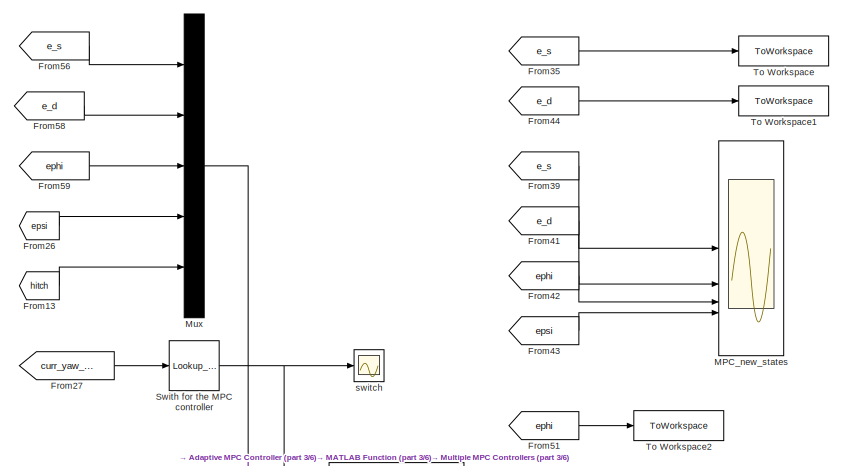
[diagram: root canvas - part 1/6, top right region]
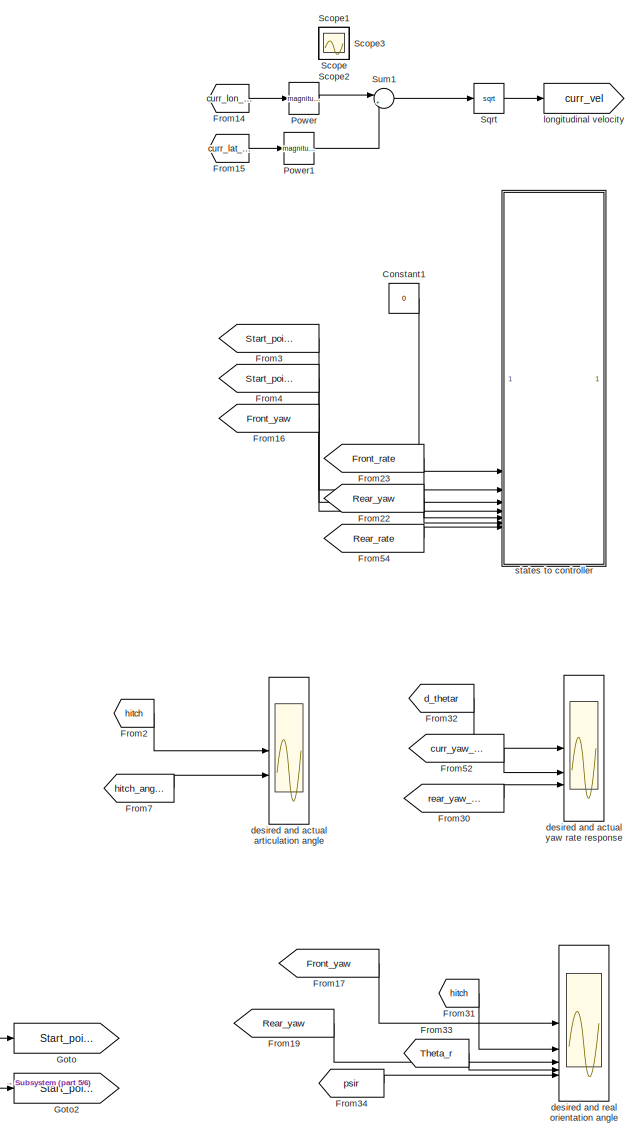
[diagram: root canvas - part 2/6, center side, full height]
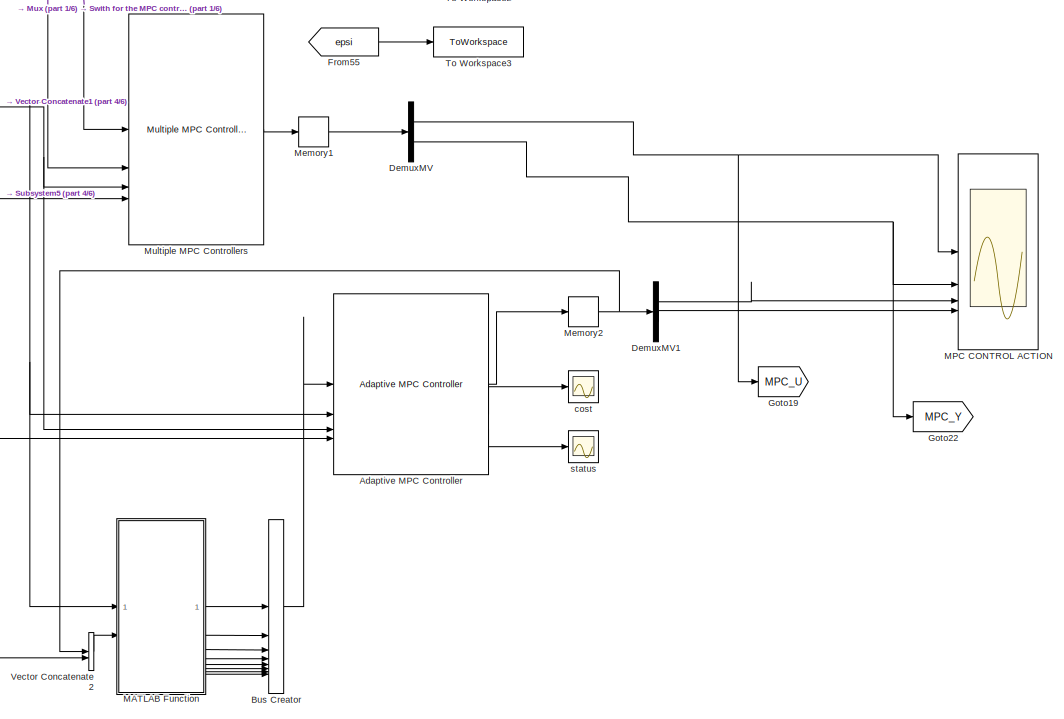
[diagram: root canvas - part 3/6, middle right region]
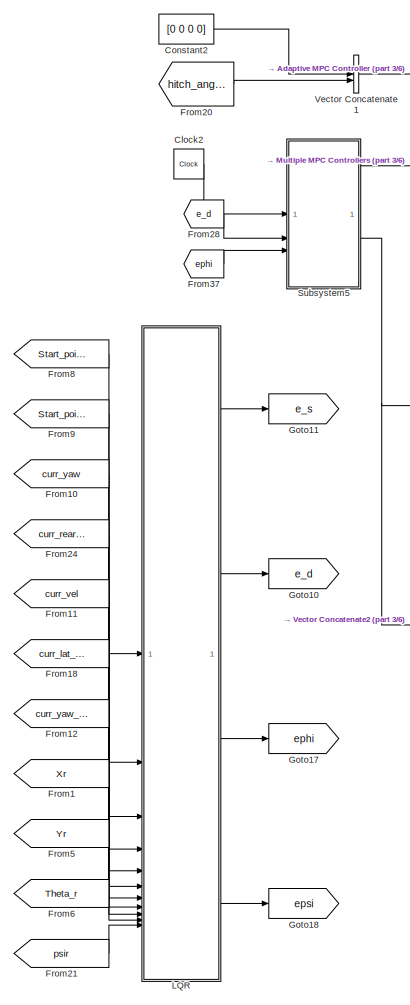
[diagram: root canvas - part 4/6, middle right region]
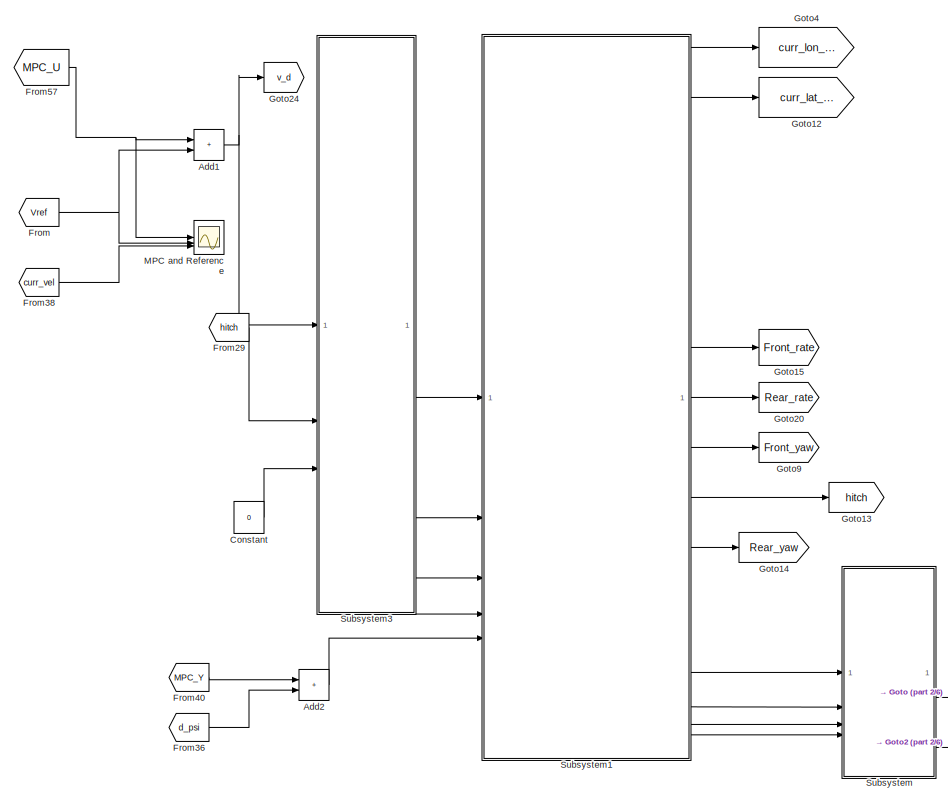
[diagram: root canvas - part 5/6, middle left region]
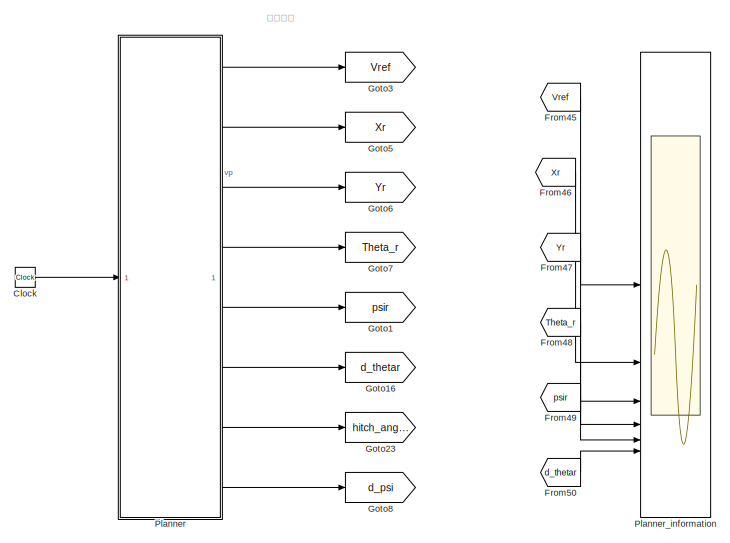
[diagram: root canvas - part 6/6, bottom left region]
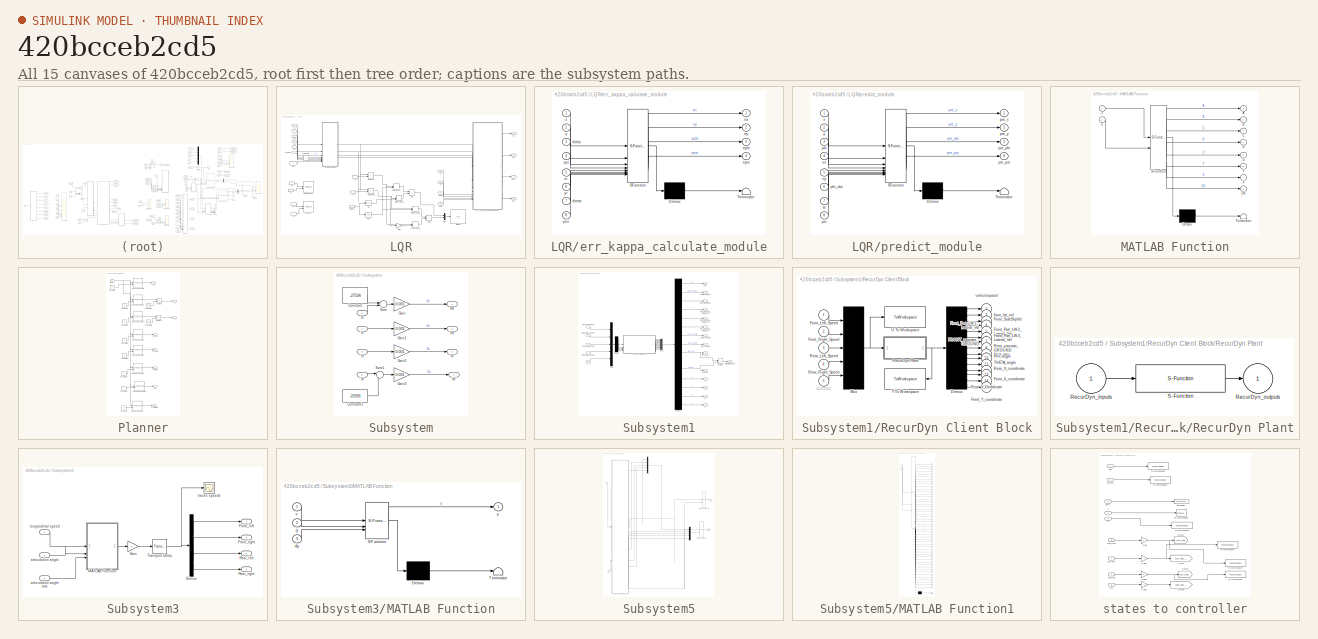
[diagram: thumbnail index - all 15 canvases of the model, root first then tree order]
MODEL slx_420bcceb2cd5
KIND model
CONFIG AbsTol = auto
CONFIG EnableMultiTasking = off
CONFIG FixedStep = 0.02
CONFIG MaxStep = auto
CONFIG MinStep = auto
CONFIG RelTol = 1e-5
CONFIG SampleTimeConstraint = Unconstrained
CONFIG SolverName = VariableStepAuto
CONFIG StartTime = 0.0
CONFIG StopTime = 40
BLOCK [Reference] Adaptive MPC Controller  REF=mpclib/Adaptive MPC Controller  (lib defined in mdl_ae329e0e0455)
  SCDEnableBlockLinearizationSpecification = on
  SourceBlock = mpclib/Adaptive MPC Controller
  SourceType = Adaptive MPC
BLOCK [Sum] Add1
  IconShape = rectangular
BLOCK [Sum] Add2
  IconShape = rectangular
BLOCK [BusCreator] Bus Creator
  DisplayOption = bar
  InheritFromInputs = on
  Inputs = 8
BLOCK [Clock] Clock
BLOCK [Clock] Clock2
BLOCK [Constant] Constant
  Value = 0
BLOCK [Constant] Constant1
  Value = 0
BLOCK [Constant] Constant2
  Value = [0 0 0 0]
BLOCK [Demux] DemuxMV
  Outputs = 2
BLOCK [Demux] DemuxMV1
  Outputs = 2
BLOCK [From] From
  GotoTag = Vref
  TagVisibility = global
BLOCK [From] From1
  GotoTag = Xr
BLOCK [From] From10
  GotoTag = curr_yaw
  TagVisibility = global
BLOCK [From] From11
  GotoTag = curr_vel
  TagVisibility = global
BLOCK [From] From12
  GotoTag = curr_yaw_rate
  TagVisibility = global
BLOCK [From] From13
  GotoTag = hitch
  TagVisibility = global
BLOCK [From] From14
  GotoTag = curr_lon_vel
BLOCK [From] From15
  GotoTag = curr_lat_vel
BLOCK [From] From16
  GotoTag = Front_yaw
BLOCK [From] From17
  GotoTag = Front_yaw
BLOCK [From] From18
  GotoTag = curr_lat_vel
BLOCK [From] From19
  GotoTag = Rear_yaw
BLOCK [From] From2
  GotoTag = hitch
  TagVisibility = global
BLOCK [From] From20
  GotoTag = hitch_angle
BLOCK [From] From21
  GotoTag = psir
BLOCK [From] From22
  GotoTag = Rear_yaw
BLOCK [From] From23
  GotoTag = Front_rate
BLOCK [From] From24
  GotoTag = curr_rearyaw
  TagVisibility = global
BLOCK [From] From26
  GotoTag = epsi
BLOCK [From] From27
  GotoTag = curr_yaw_rate
  TagVisibility = global
BLOCK [From] From28
  GotoTag = e_d
BLOCK [From] From29
  GotoTag = hitch
  TagVisibility = global
BLOCK [From] From3
  GotoTag = Start_point_X
BLOCK [From] From30
  GotoTag = rear_yaw_rate
  TagVisibility = global
BLOCK [From] From31
  GotoTag = hitch
  TagVisibility = global
BLOCK [From] From32
  GotoTag = d_thetar
BLOCK [From] From33
  GotoTag = Theta_r
BLOCK [From] From34
  GotoTag = psir
BLOCK [From] From35
  GotoTag = e_s
BLOCK [From] From36
  GotoTag = d_psi
BLOCK [From] From37
  GotoTag = ephi
BLOCK [From] From38
  GotoTag = curr_vel
  TagVisibility = global
BLOCK [From] From39
  GotoTag = e_s
BLOCK [From] From4
  GotoTag = Start_point_Y
BLOCK [From] From40
  GotoTag = MPC_Y
BLOCK [From] From41
  GotoTag = e_d
BLOCK [From] From42
  GotoTag = ephi
BLOCK [From] From43
  GotoTag = epsi
BLOCK [From] From44
  GotoTag = e_d
BLOCK [From] From45
  GotoTag = Vref
  TagVisibility = global
BLOCK [From] From46
  GotoTag = Xr
BLOCK [From] From47
  GotoTag = Yr
BLOCK [From] From48
  GotoTag = Theta_r
BLOCK [From] From49
  GotoTag = psir
BLOCK [From] From5
  GotoTag = Yr
BLOCK [From] From50
  GotoTag = d_thetar
BLOCK [From] From51
  GotoTag = ephi
BLOCK [From] From52
  GotoTag = curr_yaw_rate
  TagVisibility = global
BLOCK [From] From54
  GotoTag = Rear_rate
BLOCK [From] From55
  GotoTag = epsi
BLOCK [From] From56
  GotoTag = e_s
BLOCK [From] From57
  GotoTag = MPC_U
BLOCK [From] From58
  GotoTag = e_d
BLOCK [From] From59
  GotoTag = ephi
BLOCK [From] From6
  GotoTag = Theta_r
BLOCK [From] From7
  GotoTag = hitch_angle
BLOCK [From] From8
  GotoTag = Start_point_X
BLOCK [From] From9
  GotoTag = Start_point_Y
BLOCK [Goto] Goto
  GotoTag = Start_point_X
BLOCK [Goto] Goto1
  GotoTag = psir
BLOCK [Goto] Goto10
  GotoTag = e_d
BLOCK [Goto] Goto11
  GotoTag = e_s
BLOCK [Goto] Goto12
  GotoTag = curr_lat_vel
BLOCK [Goto] Goto13
  GotoTag = hitch
  TagVisibility = global
BLOCK [Goto] Goto14
  GotoTag = Rear_yaw
BLOCK [Goto] Goto15
  GotoTag = Front_rate
BLOCK [Goto] Goto16
  GotoTag = d_thetar
BLOCK [Goto] Goto17
  GotoTag = ephi
BLOCK [Goto] Goto18
  GotoTag = epsi
BLOCK [Goto] Goto19
  GotoTag = MPC_U
BLOCK [Goto] Goto2
  GotoTag = Start_point_Y
BLOCK [Goto] Goto20
  GotoTag = Rear_rate
BLOCK [Goto] Goto22
  GotoTag = MPC_Y
BLOCK [Goto] Goto23
  GotoTag = hitch_angle
BLOCK [Goto] Goto24
  GotoTag = v_d
BLOCK [Goto] Goto3
  GotoTag = Vref
  TagVisibility = global
BLOCK [Goto] Goto4
  GotoTag = curr_lon_vel
BLOCK [Goto] Goto5
  GotoTag = Xr
BLOCK [Goto] Goto6
  GotoTag = Yr
BLOCK [Goto] Goto7
  GotoTag = Theta_r
BLOCK [Goto] Goto8
  GotoTag = d_psi
BLOCK [Goto] Goto9
  GotoTag = Front_yaw
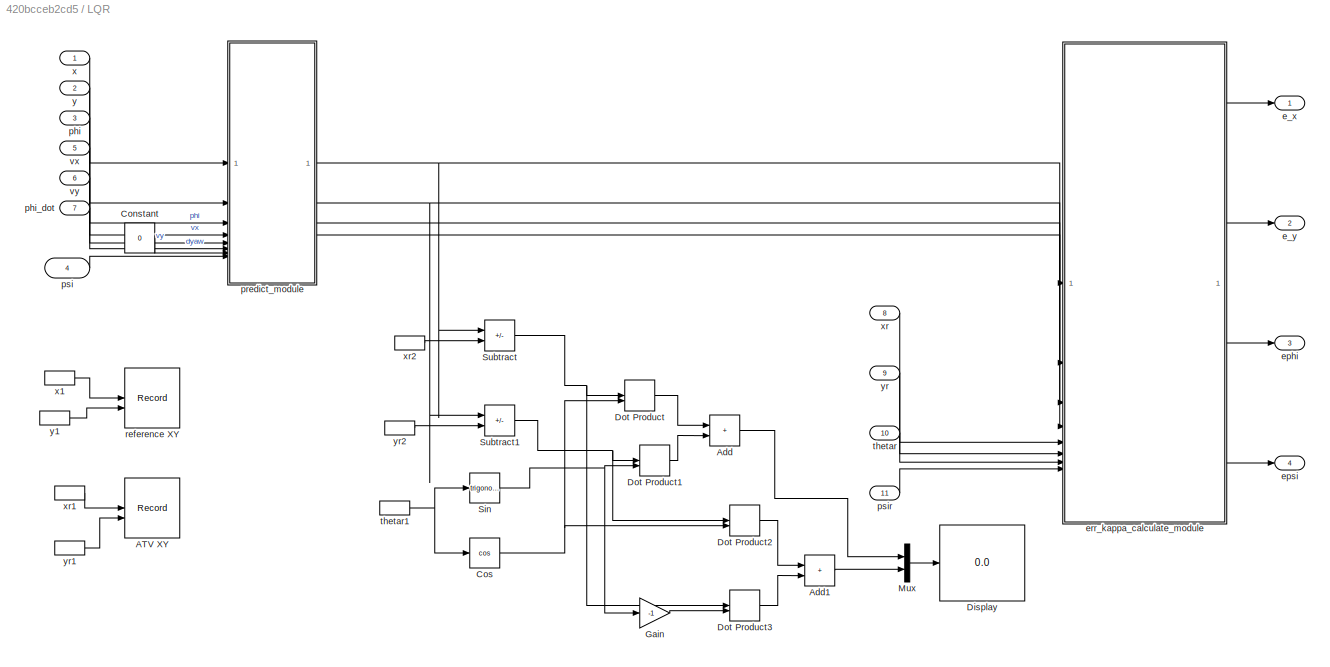
BLOCK [SubSystem] LQR
BLOCK [Record] LQR/ATV XY
  CompatibilityTag = XY
  FileSettingsInternal = {"entries":[{"content":{"excelSettings":{"content":{},"type":"Streamout.ExcelSettings"}},"type":"Streamout.FileSettingStorage","uuid":"7d4ff071-c011-4d00-aaca-92aa85f924c6"}],"packageUris":["http://schema.mathworks.com/mf0/streamout_blocks/R2020a"],"version":"1.0"}
  Layout = [1 1]
  SignalsInternal = {"entries":[{"content":{"signals":[{"content":{"blockPath":["AdaptiveMPC_only_MPC/LQR/ATV XY"],"channel":[],"dimensions":[1],"domain":"AdaptiveMPC_only_MPC/LQR/ATV XY","lineColor":"#a2142f","plots":[1],"port":1,"sid":[""],"signalID":165725,"signalName":"xr1"},"type":"RecordBlkView.Signal","uuid":"68c8aef4-2586-4868-bddc-4b1de75c0796"},{"content":{"blockPath":["AdaptiveMPC_only_MPC/LQR/ATV XY"],"ch...<+415ch>
  VisualizationBindings = {"xyplotplugin":{"info":[{"series":[{"bindingParametersList":[{"parameter":"X-Axis","signalID":165725,"signalName":"xr1"},{"parameter":"Y-Axis","signalID":165729,"signalName":"yr1"}],"seriesID":583}],"subplotID":1}]}}
  st = -1
BLOCK [Sum] LQR/Add
  IconShape = rectangular
BLOCK [Sum] LQR/Add1
  IconShape = rectangular
BLOCK [Constant] LQR/Constant
  Value = 0
BLOCK [Trigonometry] LQR/Cos
  Operator = cos
BLOCK [Display] LQR/Display
  Decimation = 1
BLOCK [DotProduct] LQR/Dot Product
  OutDataTypeStr = Inherit: Inherit via internal rule
BLOCK [DotProduct] LQR/Dot Product1
  OutDataTypeStr = Inherit: Inherit via internal rule
BLOCK [DotProduct] LQR/Dot Product2
  OutDataTypeStr = Inherit: Inherit via internal rule
BLOCK [DotProduct] LQR/Dot Product3
  OutDataTypeStr = Inherit: Inherit via internal rule
BLOCK [Gain] LQR/Gain
  Gain = -1
BLOCK [Mux] LQR/Mux
  DisplayOption = bar
  Inputs = 2
BLOCK [Trigonometry] LQR/Sin
BLOCK [Sum] LQR/Subtract
  IconShape = rectangular
  Inputs = +-
BLOCK [Sum] LQR/Subtract1
  IconShape = rectangular
  Inputs = +-
BLOCK [Outport] LQR/e_x
  VectorParamsAs1DForOutWhenUnconnected = off
BLOCK [Outport] LQR/e_y
  Port = 2
  VectorParamsAs1DForOutWhenUnconnected = off
BLOCK [Outport] LQR/ephi
  NameLocation = top
  Port = 3
  VectorParamsAs1DForOutWhenUnconnected = off
BLOCK [Outport] LQR/epsi
  NameLocation = top
  Port = 4
  VectorParamsAs1DForOutWhenUnconnected = off
BLOCK [SubSystem] LQR/err_kappa_calculate_module
  ErrorFcn = Stateflow.Translate.translate
  PermitHierarchicalResolution = ExplicitOnly
  SFBlockType = MATLAB Function
  TreatAsAtomicUnit = on
BLOCK [Demux] LQR/err_kappa_calculate_module/ Demux 
  Outputs = 1
BLOCK [S-Function] LQR/err_kappa_calculate_module/ SFunction 
  EnableBusSupport = on
  FunctionName = sf_sfun
  PortCounts = [8 5]
  SFcnIsStateOwnerBlock = off
  SFunctionDeploymentMode = off
  Tag = Stateflow S-Function 5
BLOCK [Terminator] LQR/err_kappa_calculate_module/ Terminator 
BLOCK [Outport] LQR/err_kappa_calculate_module/ephi
  Port = 3
BLOCK [Outport] LQR/err_kappa_calculate_module/epsi
  Port = 4
BLOCK [Outport] LQR/err_kappa_calculate_module/ex
  VectorParamsAs1DForOutWhenUnconnected = off
BLOCK [Outport] LQR/err_kappa_calculate_module/ey
  Port = 2
  VectorParamsAs1DForOutWhenUnconnected = off
BLOCK [Inport] LQR/err_kappa_calculate_module/psi
  Port = 4
BLOCK [Inport] LQR/err_kappa_calculate_module/psir
  Port = 8
BLOCK [Inport] LQR/err_kappa_calculate_module/theta
  Port = 3
BLOCK [Inport] LQR/err_kappa_calculate_module/thetar
  Port = 7
BLOCK [Inport] LQR/err_kappa_calculate_module/x
BLOCK [Inport] LQR/err_kappa_calculate_module/xr
  Port = 5
BLOCK [Inport] LQR/err_kappa_calculate_module/y
  Port = 2
BLOCK [Inport] LQR/err_kappa_calculate_module/yr
  Port = 6
BLOCK [Inport] LQR/phi
  Port = 3
BLOCK [Inport] LQR/phi_dot
  Port = 7
BLOCK [SubSystem] LQR/predict_module
  ErrorFcn = Stateflow.Translate.translate
  PermitHierarchicalResolution = ExplicitOnly
  SFBlockType = MATLAB Function
  TreatAsAtomicUnit = on
BLOCK [Demux] LQR/predict_module/ Demux 
  Outputs = 1
BLOCK [S-Function] LQR/predict_module/ SFunction 
  EnableBusSupport = on
  FunctionName = sf_sfun
  PortCounts = [8 5]
  SFcnIsStateOwnerBlock = off
  SFunctionDeploymentMode = off
  Tag = Stateflow S-Function 9
BLOCK [Terminator] LQR/predict_module/ Terminator 
BLOCK [Inport] LQR/predict_module/phi
  Port = 3
BLOCK [Inport] LQR/predict_module/phi_dot
  Port = 6
BLOCK [Outport] LQR/predict_module/pre_phi
  Port = 3
  VectorParamsAs1DForOutWhenUnconnected = off
BLOCK [Outport] LQR/predict_module/pre_psi
  Port = 4
BLOCK [Outport] LQR/predict_module/pre_x
  VectorParamsAs1DForOutWhenUnconnected = off
BLOCK [Outport] LQR/predict_module/pre_y
  Port = 2
  VectorParamsAs1DForOutWhenUnconnected = off
BLOCK [Inport] LQR/predict_module/psi
  Port = 8
BLOCK [Inport] LQR/predict_module/ts
  Port = 7
BLOCK [Inport] LQR/predict_module/vx
  Port = 4
BLOCK [Inport] LQR/predict_module/vy
  Port = 5
BLOCK [Inport] LQR/predict_module/x
BLOCK [Inport] LQR/predict_module/y
  Port = 2
BLOCK [Inport] LQR/psi
  Port = 4
BLOCK [Inport] LQR/psir
  Port = 11
BLOCK [Record] LQR/reference XY
  CompatibilityTag = XY
  FileSettingsInternal = {"entries":[{"content":{"excelSettings":{"content":{},"type":"Streamout.ExcelSettings"}},"type":"Streamout.FileSettingStorage","uuid":"01dd9b82-04e5-459d-9b91-d9a9579cc2c9"}],"packageUris":["http://schema.mathworks.com/mf0/streamout_blocks/R2020a"],"version":"1.0"}
  Layout = [1 1]
  SignalsInternal = {"entries":[{"content":{"signals":[{"content":{"blockPath":["AdaptiveMPC_only_MPC/LQR/reference XY"],"channel":[],"dimensions":[1],"domain":"AdaptiveMPC_only_MPC/LQR/reference XY","lineColor":"#a2142f","plots":[1],"port":1,"sid":[""],"signalID":165733,"signalName":"x1"},"type":"RecordBlkView.Signal","uuid":"15320c6c-986b-4afd-bf62-20c31eac0383"},{"content":{"blockPath":["AdaptiveMPC_only_MPC/LQR/r...<+437ch>
  VisualizationBindings = {"xyplotplugin":{"info":[{"series":[{"bindingParametersList":[{"parameter":"X-Axis","signalID":165733,"signalName":"x1"},{"parameter":"Y-Axis","signalID":165737,"signalName":"y1"}],"seriesID":16425}],"subplotID":1}]}}
  st = -1
BLOCK [Inport] LQR/thetar
  Port = 10
BLOCK [InportShadow] LQR/thetar1
  Port = 10
BLOCK [Inport] LQR/vx
  Port = 5
BLOCK [Inport] LQR/vy
  Port = 6
BLOCK [Inport] LQR/x
BLOCK [InportShadow] LQR/x1
BLOCK [Inport] LQR/xr
  Port = 8
BLOCK [InportShadow] LQR/xr1
  Port = 8
BLOCK [InportShadow] LQR/xr2
  Port = 8
BLOCK [Inport] LQR/y
  Port = 2
BLOCK [InportShadow] LQR/y1
  Port = 2
BLOCK [Inport] LQR/yr
  Port = 9
BLOCK [InportShadow] LQR/yr1
  Port = 9
BLOCK [InportShadow] LQR/yr2
  Port = 9
BLOCK [SubSystem] MATLAB Function
  ErrorFcn = Stateflow.Translate.translate
  PermitHierarchicalResolution = ExplicitOnly
  SFBlockType = MATLAB Function
  TreatAsAtomicUnit = on
BLOCK [Demux] MATLAB Function/ Demux 
  Outputs = 1
BLOCK [S-Function] MATLAB Function/ SFunction 
  EnableBusSupport = on
  FunctionName = sf_sfun
  PortCounts = [2 9]
  SFcnIsStateOwnerBlock = off
  SFunctionDeploymentMode = off
  Tag = Stateflow S-Function 4
BLOCK [Terminator] MATLAB Function/ Terminator 
BLOCK [Outport] MATLAB Function/A
BLOCK [Outport] MATLAB Function/B
  Port = 2
BLOCK [Outport] MATLAB Function/C
  Port = 3
BLOCK [Outport] MATLAB Function/D
  Port = 4
BLOCK [Outport] MATLAB Function/DX
  Port = 8
BLOCK [Outport] MATLAB Function/U
  Port = 5
BLOCK [Outport] MATLAB Function/X
  Port = 7
BLOCK [Outport] MATLAB Function/Y
  Port = 6
BLOCK [Inport] MATLAB Function/u
  Port = 2
BLOCK [Inport] MATLAB Function/x
BLOCK [Scope] MPC CONTROL ACTION
  Floating = off
  NumInputPorts = 4
  ScopeSpecificationString = Simulink.scopes.TimeScopeBlockCfg('CurrentConfiguration', extmgr.ConfigurationSet(extmgr.Configuration('Core','General UI',true),extmgr.Configuration('Core','Source UI',true),extmgr.Configuration('Sources','WiredSimulink',true,'DataLoggingVariableName','ScopeData3'),extmgr.Configuration('Visuals','Time Domain',true,'SerializedDisplays',{struct('MinYLimReal','-0.39223','MaxYLimReal','3.53005','YLab...<+3491ch>
BLOCK [Scope] MPC and Reference
  Floating = off
  NumInputPorts = 3
  ScopeSpecificationString = Simulink.scopes.TimeScopeBlockCfg('CurrentConfiguration', extmgr.ConfigurationSet(extmgr.Configuration('Core','General UI',true),extmgr.Configuration('Core','Source UI',true),extmgr.Configuration('Sources','WiredSimulink',true,'DataLoggingVariableName','ScopeData2'),extmgr.Configuration('Visuals','Time Domain',true,'SerializedDisplays',{struct('MinYLimReal','-0.66777','MaxYLimReal','6.00994','YLab...<+1548ch>
BLOCK [Scope] MPC_new_states
  Floating = off
  NumInputPorts = 4
  ScopeSpecificationString = Simulink.scopes.TimeScopeBlockCfg('CurrentConfiguration', extmgr.ConfigurationSet(extmgr.Configuration('Core','General UI',true),extmgr.Configuration('Core','Source UI',true),extmgr.Configuration('Sources','WiredSimulink',true,'DataLoggingVariableName','ScopeData5'),extmgr.Configuration('Visuals','Time Domain',true,'SerializedDisplays',{struct('MinYLimReal','-0.70042','MaxYLimReal','0.13639','YLab...<+3636ch>
BLOCK [Memory] Memory1
BLOCK [Memory] Memory2
BLOCK [Reference] Multiple MPC Controllers  REF=mpclib/Multiple MPC Controllers  (lib defined in mdl_ae329e0e0455)
  SourceBlock = mpclib/Multiple MPC Controllers
  SourceType = Multiple MPC
BLOCK [Mux] Mux
  DisplayOption = bar
  Inputs = 5
BLOCK [SubSystem] Planner
BLOCK [Lookup_n-D] Planner/2-D Lookup Table
  BreakpointsForDimension1 = t
  BreakpointsForDimension2 = [1:8]
  InputPortMap = u0,u1
  InternalRulePriority = Speed
  RndMeth = Simplest
  Table = val
BLOCK [Lookup_n-D] Planner/2-D Lookup Table1
  BreakpointsForDimension1 = t
  BreakpointsForDimension2 = [1:8]
  InputPortMap = u0,u1
  InternalRulePriority = Speed
  RndMeth = Simplest
  Table = val
BLOCK [Lookup_n-D] Planner/2-D Lookup Table2
  BreakpointsForDimension1 = t
  BreakpointsForDimension2 = [1:8]
  InputPortMap = u0,u1
  InternalRulePriority = Speed
  RndMeth = Simplest
  Table = val
BLOCK [Lookup_n-D] Planner/2-D Lookup Table3
  BreakpointsForDimension1 = t
  BreakpointsForDimension2 = [1:8]
  InputPortMap = u0,u1
  InternalRulePriority = Speed
  RndMeth = Simplest
  Table = val
BLOCK [Lookup_n-D] Planner/2-D Lookup Table4
  BreakpointsForDimension1 = t
  BreakpointsForDimension2 = [1:8]
  InputPortMap = u0,u1
  InternalRulePriority = Speed
  RndMeth = Simplest
  Table = val
BLOCK [Lookup_n-D] Planner/2-D Lookup Table5
  BreakpointsForDimension1 = t
  BreakpointsForDimension2 = [1:8]
  InputPortMap = u0,u1
  InternalRulePriority = Speed
  RndMeth = Simplest
  Table = val
BLOCK [Lookup_n-D] Planner/2-D Lookup Table6
  BreakpointsForDimension1 = t
  BreakpointsForDimension2 = [1:8]
  InputPortMap = u0,u1
  InternalRulePriority = Speed
  RndMeth = Simplest
  Table = val
BLOCK [Lookup_n-D] Planner/2-D Lookup Table7
  BreakpointsForDimension1 = t
  BreakpointsForDimension2 = [1:8]
  InputPortMap = u0,u1
  InternalRulePriority = Speed
  RndMeth = Simplest
  Table = val
BLOCK [Constant] Planner/Constant
BLOCK [Constant] Planner/Constant1
  Value = 2
BLOCK [Constant] Planner/Constant2
  Value = 3
BLOCK [Constant] Planner/Constant3
  Value = 4
BLOCK [Constant] Planner/Constant4
  Value = 5
BLOCK [Constant] Planner/Constant5
  Value = 6
BLOCK [Constant] Planner/Constant6
  Value = 7
BLOCK [Constant] Planner/Constant7
  Value = 43.5
BLOCK [Constant] Planner/Constant8
  Value = 2.02
BLOCK [Constant] Planner/Constant9
  Value = 8
BLOCK [Outport] Planner/F_yaw
  Port = 4
BLOCK [Inport] Planner/Input
BLOCK [Outport] Planner/R_yaw
  Port = 5
BLOCK [Sum] Planner/Subtract
  IconShape = rectangular
  Inputs = +-
BLOCK [Sum] Planner/Subtract1
  IconShape = rectangular
  Inputs = +-
BLOCK [Outport] Planner/V_ref
BLOCK [Outport] Planner/Xr
  Port = 2
BLOCK [Outport] Planner/Yawrate
  Port = 6
BLOCK [Outport] Planner/Yr
  Port = 3
BLOCK [Outport] Planner/d_gamma
  Port = 8
BLOCK [Outport] Planner/delta
  Port = 7
BLOCK [Scope] Planner_information
  Floating = off
  NumInputPorts = 6
  ScopeSpecificationString = Simulink.scopes.TimeScopeBlockCfg('CurrentConfiguration', extmgr.ConfigurationSet(extmgr.Configuration('Core','General UI',true),extmgr.Configuration('Core','Source UI',true),extmgr.Configuration('Sources','WiredSimulink',true,'DataLoggingVariableName','ScopeData3'),extmgr.Configuration('Visuals','Time Domain',true,'SerializedDisplays',{struct('MinYLimReal','2.19269','MaxYLimReal','2.2504','YLabel...<+5108ch>
BLOCK [Math] Power
  Operator = magnitude^2
BLOCK [Math] Power1
  Operator = magnitude^2
BLOCK [Scope] Scope
  Floating = off
  IOType = viewer
  NumInputPorts = 1
  ScopeSpecificationString = Simulink.scopes.TimeScopeBlockCfg('CurrentConfiguration', extmgr.ConfigurationSet(extmgr.Configuration('Core','General UI',true),extmgr.Configuration('Core','Source UI',true),extmgr.Configuration('Sources','WiredSimulink',true),extmgr.Configuration('Visuals','Time Domain',true,'SerializedDisplays',{struct('MinYLimReal','-0.32445','MaxYLimReal','3.01005','YLabelReal','','MinYLimMag','0.00000','MaxY...<+1394ch>
BLOCK [Scope] Scope1
  Floating = off
  IOType = viewer
  NumInputPorts = 1
  ScopeSpecificationString = Simulink.scopes.TimeScopeBlockCfg('CurrentConfiguration', extmgr.ConfigurationSet(extmgr.Configuration('Core','General UI',true),extmgr.Configuration('Core','Source UI',true),extmgr.Configuration('Sources','WiredSimulink',true,'DataLoggingVariableName','ScopeData1'),extmgr.Configuration('Visuals','Time Domain',true,'SerializedDisplays',{struct('MinYLimReal','-0.54681','MaxYLimReal','0.06644','YLab...<+1389ch>
BLOCK [Scope] Scope2
  Floating = off
  IOType = viewer
  NumInputPorts = 1
  ScopeSpecificationString = Simulink.scopes.TimeScopeBlockCfg('CurrentConfiguration', extmgr.ConfigurationSet(extmgr.Configuration('Core','General UI',true),extmgr.Configuration('Core','Source UI',true),extmgr.Configuration('Sources','WiredSimulink',true,'DataLoggingVariableName','ScopeData3'),extmgr.Configuration('Visuals','Time Domain',true,'SerializedDisplays',{struct('MinYLimReal','-1.00000','MaxYLimReal','1.00000','YLab...<+1414ch>
BLOCK [Scope] Scope3
  Floating = off
  IOType = viewer
  NumInputPorts = 1
  ScopeSpecificationString = Simulink.scopes.TimeScopeBlockCfg('CurrentConfiguration', extmgr.ConfigurationSet(extmgr.Configuration('Core','General UI',true),extmgr.Configuration('Core','Source UI',true),extmgr.Configuration('Sources','WiredSimulink',true,'DataLoggingVariableName','ScopeData4'),extmgr.Configuration('Visuals','Time Domain',true,'SerializedDisplays',{struct('MinYLimReal','-2.75','MaxYLimReal','24.75','YLabelRea...<+1416ch>
BLOCK [Sqrt] Sqrt
BLOCK [SubSystem] Subsystem
BLOCK [Constant] Subsystem/Constant
  Value = -27526
BLOCK [Constant] Subsystem/Constant1
  Value = -22591
BLOCK [Gain] Subsystem/Gain
  Gain = 0.001
BLOCK [Gain] Subsystem/Gain1
  Gain = 0.001
BLOCK [Gain] Subsystem/Gain2
  Gain = 0.001
BLOCK [Gain] Subsystem/Gain3
  Gain = 0.001
BLOCK [Sum] Subsystem/Sum
  Inputs = -+
  NameLocation = top
BLOCK [Sum] Subsystem/Sum1
  Inputs = |+-
BLOCK [Outport] Subsystem/XF
  Port = 3
BLOCK [Outport] Subsystem/XR
BLOCK [Inport] Subsystem/Xf
  Port = 3
BLOCK [Inport] Subsystem/Xr
BLOCK [Outport] Subsystem/YF
  Port = 4
BLOCK [Outport] Subsystem/YR
  Port = 2
BLOCK [Inport] Subsystem/Yf
  Port = 4
BLOCK [Inport] Subsystem/Yr
  Port = 2
BLOCK [SubSystem] Subsystem1
BLOCK [Demux] Subsystem1/Demux
  Outputs = 5
BLOCK [Demux] Subsystem1/Demux1
  Outputs = 15
BLOCK [Inport] Subsystem1/Front_Left_Speed 
BLOCK [Outport] Subsystem1/Front_Part_LW1_Lateral_Vel
  Port = 4
BLOCK [Outport] Subsystem1/Front_Part_LW2_Lateral_Vel
  Port = 5
BLOCK [Outport] Subsystem1/Front_Part_LW3_Lateral_Vel
  Port = 6
BLOCK [Inport] Subsystem1/Front_Right_Speed
  Port = 2
BLOCK [Outport] Subsystem1/Front_SideSlipVel         
  Port = 3
BLOCK [Outport] Subsystem1/Front_Yaw_rate
  Port = 7
BLOCK [Outport] Subsystem1/Lateral_Vel_front
  Port = 2
BLOCK [Mux] Subsystem1/Mux
  DisplayOption = bar
  Inputs = 5
BLOCK [Mux] Subsystem1/Mux1
  DisplayOption = bar
  Inputs = 15
BLOCK [Inport] Subsystem1/Rear_Left_Speed  
  Port = 3
BLOCK [Inport] Subsystem1/Rear_Right_Speed 
  Port = 4
BLOCK [SubSystem] Subsystem1/RecurDyn Client Block
  ShowPortLabels = none
BLOCK [Demux] Subsystem1/RecurDyn Client Block/Demux
  DisplayOption = none
  Outputs = 15
BLOCK [Outport] Subsystem1/RecurDyn Client Block/FRONT_yawrate_GROUND      
  Port = 7
BLOCK [Inport] Subsystem1/RecurDyn Client Block/Front_Left_Speed 
BLOCK [Outport] Subsystem1/RecurDyn Client Block/Front_Part_LW1_Lateral_Vel
  Port = 4
BLOCK [Outport] Subsystem1/RecurDyn Client Block/Front_Part_LW2_Lateral_Vel
  Port = 5
BLOCK [Outport] Subsystem1/RecurDyn Client Block/Front_Part_LW3_Lateral_Vel
  Port = 6
BLOCK [Inport] Subsystem1/RecurDyn Client Block/Front_Right_Speed
  Port = 2
BLOCK [Outport] Subsystem1/RecurDyn Client Block/Front_SideSlipVel         
  Port = 3
BLOCK [Outport] Subsystem1/RecurDyn Client Block/Front_X_coordinate        
  Port = 14
BLOCK [Outport] Subsystem1/RecurDyn Client Block/Front_Y_coordinate        
  Port = 15
BLOCK [Mux] Subsystem1/RecurDyn Client Block/Mux
  Inputs = 5
BLOCK [Outport] Subsystem1/RecurDyn Client Block/PHI_angle                 
  Port = 10
BLOCK [Inport] Subsystem1/RecurDyn Client Block/Rear_Left_Speed  
  Port = 3
BLOCK [Inport] Subsystem1/RecurDyn Client Block/Rear_Right_Speed 
  Port = 4
BLOCK [Outport] Subsystem1/RecurDyn Client Block/Rear_X_coordinate         
  Port = 12
BLOCK [Outport] Subsystem1/RecurDyn Client Block/Rear_Y_coordinate         
  Port = 13
BLOCK [Outport] Subsystem1/RecurDyn Client Block/Rear_yawrate_GROUND       
  Port = 8
BLOCK [SubSystem] Subsystem1/RecurDyn Client Block/RecurDyn Plant
BLOCK [Inport] Subsystem1/RecurDyn Client Block/RecurDyn Plant/ RecurDyn_inputs
BLOCK [Outport] Subsystem1/RecurDyn Client Block/RecurDyn Plant/RecurDyn_outputs
  InitialOutput = 0
BLOCK [S-Function] Subsystem1/RecurDyn Client Block/RecurDyn Plant/S-Function
  EnableBusSupport = off
  FunctionName = CoSim_Simulink_9
  Parameters = RecurDyn_controltimestep_,RecurDyn_model_name,RecurDyn_step_,Matlab_version_,RecurDyn_model_n,Plant_inputs_num,Plant_outputs_num,Waitingtime,RecurDyn_CoSim
  SFcnIsStateOwnerBlock = off
  SFunctionDeploymentMode = off
BLOCK [Outport] Subsystem1/RecurDyn Client Block/THETA_angle               
  Port = 11
BLOCK [ToWorkspace] Subsystem1/RecurDyn Client Block/U To Workspace
  MaxDataPoints = inf
  VariableName = RecurDyn_inputs
BLOCK [ToWorkspace] Subsystem1/RecurDyn Client Block/Y To Workspace
  MaxDataPoints = inf
  VariableName = RecurDyn_outputs
BLOCK [Outport] Subsystem1/RecurDyn Client Block/front_lat_vel             
  Port = 2
BLOCK [Outport] Subsystem1/RecurDyn Client Block/front_yaw                 
  Port = 9
BLOCK [Outport] Subsystem1/RecurDyn Client Block/vehiclespeed              
BLOCK [Inport] Subsystem1/RecurDyn Client Block/铰接转动角            
  Port = 5
BLOCK [Sum] Subsystem1/Subtract
  IconShape = rectangular
  Inputs = +-
BLOCK [Outport] Subsystem1/Vel
BLOCK [Outport] Subsystem1/Xf
  Port = 14
BLOCK [Outport] Subsystem1/Xr
  Port = 12
BLOCK [Outport] Subsystem1/Yf
  Port = 15
BLOCK [Outport] Subsystem1/Yr
  Port = 13
BLOCK [Outport] Subsystem1/articulation angle
  Port = 10
BLOCK [Outport] Subsystem1/front_yaw
  Port = 9
BLOCK [Outport] Subsystem1/rear yaw
  Port = 11
BLOCK [Outport] Subsystem1/rear_yaw_rate
  Port = 8
BLOCK [Inport] Subsystem1/铰接转动角            
  Port = 5
BLOCK [SubSystem] Subsystem3
BLOCK [Demux] Subsystem3/Demux
BLOCK [Outport] Subsystem3/Front_left
BLOCK [Outport] Subsystem3/Front_right
  Port = 2
BLOCK [Gain] Subsystem3/Gain
  Gain = 4
BLOCK [SubSystem] Subsystem3/MATLAB Function
  ErrorFcn = Stateflow.Translate.translate
  PermitHierarchicalResolution = ExplicitOnly
  SFBlockType = MATLAB Function
  TreatAsAtomicUnit = on
BLOCK [Demux] Subsystem3/MATLAB Function/ Demux 
  Outputs = 1
BLOCK [S-Function] Subsystem3/MATLAB Function/ SFunction 
  EnableBusSupport = on
  FunctionName = sf_sfun
  PortCounts = [3 2]
  SFcnIsStateOwnerBlock = off
  SFunctionDeploymentMode = off
  Tag = Stateflow S-Function 2
BLOCK [Terminator] Subsystem3/MATLAB Function/ Terminator 
BLOCK [Inport] Subsystem3/MATLAB Function/dg
  Port = 3
BLOCK [Inport] Subsystem3/MATLAB Function/g
  Port = 2
BLOCK [Inport] Subsystem3/MATLAB Function/v
BLOCK [Outport] Subsystem3/MATLAB Function/y
BLOCK [Outport] Subsystem3/Rear_left
  Port = 3
BLOCK [Outport] Subsystem3/Rear_right
  Port = 4
BLOCK [TransportDelay] Subsystem3/Transport Delay
  DelayTime = 0.1
BLOCK [Inport] Subsystem3/articulation angle
  Port = 2
BLOCK [Inport] Subsystem3/articulation angle rate
  Port = 3
BLOCK [Inport] Subsystem3/longitudinal speed
BLOCK [Scope] Subsystem3/tracks speeds
  Floating = off
  NumInputPorts = 1
  ScopeSpecificationString = Simulink.scopes.TimeScopeBlockCfg('CurrentConfiguration', extmgr.ConfigurationSet(extmgr.Configuration('Core','General UI',true),extmgr.Configuration('Core','Source UI',true),extmgr.Configuration('Sources','WiredSimulink',true,'DataLoggingVariableName','ScopeData2'),extmgr.Configuration('Visuals','Time Domain',true,'SerializedDisplays',{struct('MinYLimReal','-2.6534','MaxYLimReal','23.88059','YLab...<+1627ch>
BLOCK [SubSystem] Subsystem5
BLOCK [Inport] Subsystem5/In2
  Port = 2
BLOCK [Inport] Subsystem5/In3
  Port = 3
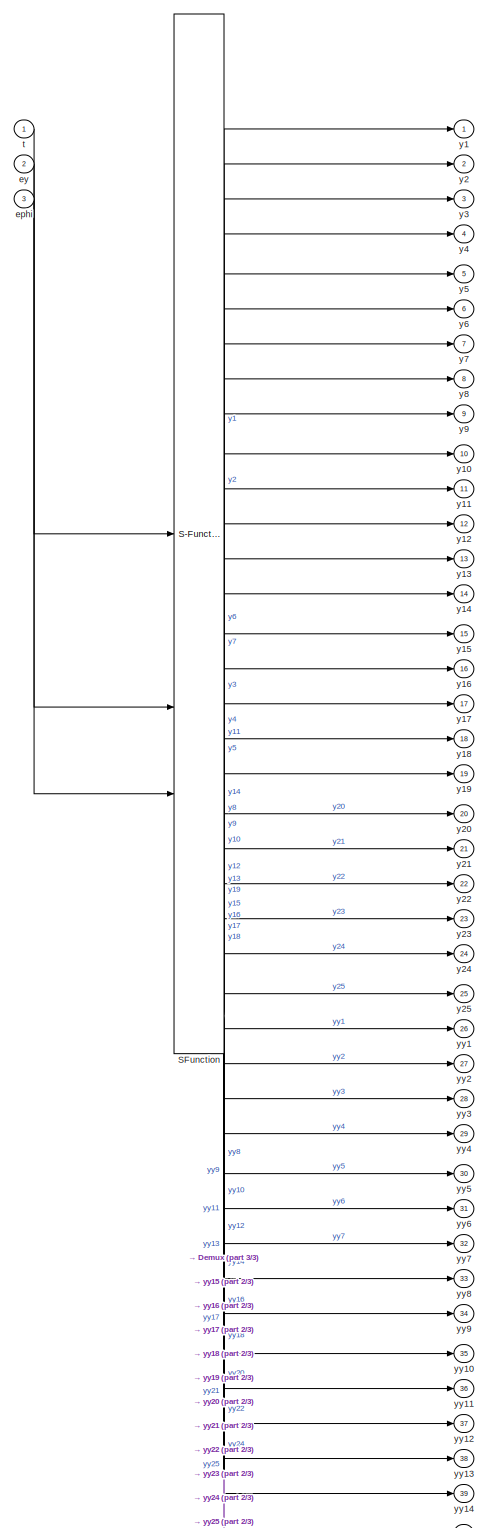
[diagram: Subsystem5/MATLAB Function1 - part 1/3, most of the canvas]
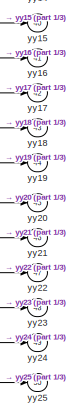
[diagram: Subsystem5/MATLAB Function1 - part 2/3, bottom right region]
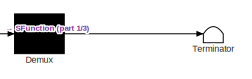
[diagram: Subsystem5/MATLAB Function1 - part 3/3, bottom right region]
BLOCK [SubSystem] Subsystem5/MATLAB Function1
  ErrorFcn = Stateflow.Translate.translate
  PermitHierarchicalResolution = ExplicitOnly
  SFBlockType = MATLAB Function
  SystemSampleTime = 0.02
  TreatAsAtomicUnit = on
BLOCK [Demux] Subsystem5/MATLAB Function1/ Demux 
  Outputs = 1
BLOCK [S-Function] Subsystem5/MATLAB Function1/ SFunction 
  EnableBusSupport = on
  FunctionName = sf_sfun
  PortCounts = [3 51]
  SFcnIsStateOwnerBlock = off
  SFunctionDeploymentMode = off
  Tag = Stateflow S-Function 1
BLOCK [Terminator] Subsystem5/MATLAB Function1/ Terminator 
BLOCK [Inport] Subsystem5/MATLAB Function1/ephi
  Port = 3
BLOCK [Inport] Subsystem5/MATLAB Function1/ey
  Port = 2
BLOCK [Inport] Subsystem5/MATLAB Function1/t
BLOCK [Outport] Subsystem5/MATLAB Function1/y1
BLOCK [Outport] Subsystem5/MATLAB Function1/y10
  Port = 10
BLOCK [Outport] Subsystem5/MATLAB Function1/y11
  Port = 11
BLOCK [Outport] Subsystem5/MATLAB Function1/y12
  Port = 12
BLOCK [Outport] Subsystem5/MATLAB Function1/y13
  Port = 13
BLOCK [Outport] Subsystem5/MATLAB Function1/y14
  Port = 14
BLOCK [Outport] Subsystem5/MATLAB Function1/y15
  Port = 15
BLOCK [Outport] Subsystem5/MATLAB Function1/y16
  Port = 16
BLOCK [Outport] Subsystem5/MATLAB Function1/y17
  Port = 17
BLOCK [Outport] Subsystem5/MATLAB Function1/y18
  Port = 18
BLOCK [Outport] Subsystem5/MATLAB Function1/y19
  Port = 19
BLOCK [Outport] Subsystem5/MATLAB Function1/y2
  Port = 2
BLOCK [Outport] Subsystem5/MATLAB Function1/y20
  Port = 20
BLOCK [Outport] Subsystem5/MATLAB Function1/y21
  Port = 21
BLOCK [Outport] Subsystem5/MATLAB Function1/y22
  Port = 22
BLOCK [Outport] Subsystem5/MATLAB Function1/y23
  Port = 23
BLOCK [Outport] Subsystem5/MATLAB Function1/y24
  Port = 24
BLOCK [Outport] Subsystem5/MATLAB Function1/y25
  Port = 25
BLOCK [Outport] Subsystem5/MATLAB Function1/y3
  Port = 3
BLOCK [Outport] Subsystem5/MATLAB Function1/y4
  Port = 4
BLOCK [Outport] Subsystem5/MATLAB Function1/y5
  Port = 5
BLOCK [Outport] Subsystem5/MATLAB Function1/y6
  Port = 6
BLOCK [Outport] Subsystem5/MATLAB Function1/y7
  Port = 7
BLOCK [Outport] Subsystem5/MATLAB Function1/y8
  Port = 8
BLOCK [Outport] Subsystem5/MATLAB Function1/y9
  Port = 9
BLOCK [Outport] Subsystem5/MATLAB Function1/yy1
  Port = 26
BLOCK [Outport] Subsystem5/MATLAB Function1/yy10
  Port = 35
BLOCK [Outport] Subsystem5/MATLAB Function1/yy11
  Port = 36
BLOCK [Outport] Subsystem5/MATLAB Function1/yy12
  Port = 37
BLOCK [Outport] Subsystem5/MATLAB Function1/yy13
  Port = 38
BLOCK [Outport] Subsystem5/MATLAB Function1/yy14
  Port = 39
BLOCK [Outport] Subsystem5/MATLAB Function1/yy15
  Port = 40
BLOCK [Outport] Subsystem5/MATLAB Function1/yy16
  Port = 41
BLOCK [Outport] Subsystem5/MATLAB Function1/yy17
  Port = 42
BLOCK [Outport] Subsystem5/MATLAB Function1/yy18
  Port = 43
BLOCK [Outport] Subsystem5/MATLAB Function1/yy19
  Port = 44
BLOCK [Outport] Subsystem5/MATLAB Function1/yy2
  Port = 27
BLOCK [Outport] Subsystem5/MATLAB Function1/yy20
  Port = 45
BLOCK [Outport] Subsystem5/MATLAB Function1/yy21
  Port = 46
BLOCK [Outport] Subsystem5/MATLAB Function1/yy22
  Port = 47
BLOCK [Outport] Subsystem5/MATLAB Function1/yy23
  Port = 48
BLOCK [Outport] Subsystem5/MATLAB Function1/yy24
  Port = 49
BLOCK [Outport] Subsystem5/MATLAB Function1/yy25
  Port = 50
BLOCK [Outport] Subsystem5/MATLAB Function1/yy3
  Port = 28
BLOCK [Outport] Subsystem5/MATLAB Function1/yy4
  Port = 29
BLOCK [Outport] Subsystem5/MATLAB Function1/yy5
  Port = 30
BLOCK [Outport] Subsystem5/MATLAB Function1/yy6
  Port = 31
BLOCK [Outport] Subsystem5/MATLAB Function1/yy7
  Port = 32
BLOCK [Outport] Subsystem5/MATLAB Function1/yy8
  Port = 33
BLOCK [Outport] Subsystem5/MATLAB Function1/yy9
  Port = 34
BLOCK [Concatenate] Subsystem5/Matrix Concatenate
  ConcatenateDimension = 2
  Mode = Multidimensional array
BLOCK [Concatenate] Subsystem5/Matrix Concatenate1
  ConcatenateDimension = 2
  Mode = Multidimensional array
BLOCK [Mux] Subsystem5/Mux
  DisplayOption = bar
  Inputs = 5
BLOCK [Mux] Subsystem5/Mux1
  DisplayOption = bar
  Inputs = 5
BLOCK [Outport] Subsystem5/Out1
BLOCK [Outport] Subsystem5/Out2
  Port = 2
BLOCK [Inport] Subsystem5/t
BLOCK [Sum] Sum1
  Inputs = |++
BLOCK [Lookup_n-D] Swith for the MPC controller
  BreakpointsForDimension1 = [-0.5  0  0.5]
  BreakpointsForDimension1FirstPoint = -0.1
  BreakpointsForDimension1Spacing = 0.1
  InputPortMap = u0
  InternalRulePriority = Speed
  InterpMethod = Nearest
  NumberOfTableDimensions = 1
  RndMeth = Simplest
  Table = [1  2  3]
BLOCK [ToWorkspace] To Workspace
  FixptAsFi = on
  MaxDataPoints = inf
  SampleTime = -1
  SaveFormat = Timeseries
  VariableName = es
BLOCK [ToWorkspace] To Workspace1
  FixptAsFi = on
  MaxDataPoints = inf
  SampleTime = -1
  SaveFormat = Timeseries
  VariableName = ey
BLOCK [ToWorkspace] To Workspace2
  FixptAsFi = on
  MaxDataPoints = inf
  SampleTime = -1
  SaveFormat = Timeseries
  VariableName = ephi
BLOCK [ToWorkspace] To Workspace3
  FixptAsFi = on
  MaxDataPoints = inf
  SampleTime = -1
  SaveFormat = Timeseries
  VariableName = epsi
BLOCK [Concatenate] Vector Concatenate1
BLOCK [Concatenate] Vector Concatenate2
  ConcatenateDimension = 2
  Mode = Multidimensional array
BLOCK [Scope] cost
  Floating = off
  NumInputPorts = 1
  ScopeSpecificationString = Simulink.scopes.TimeScopeBlockCfg('CurrentConfiguration', extmgr.ConfigurationSet(extmgr.Configuration('Core','General UI',true),extmgr.Configuration('Core','Source UI',true),extmgr.Configuration('Sources','WiredSimulink',true,'DataLoggingVariableName','ScopeData1'),extmgr.Configuration('Visuals','Time Domain',true,'SerializedDisplays',{struct('MinYLimReal','-1.70527','MaxYLimReal','15.46409','YLa...<+1490ch>
BLOCK [Scope] desired and actual articulation angle
  Floating = off
  NumInputPorts = 2
  ScopeSpecificationString = Simulink.scopes.TimeScopeBlockCfg('CurrentConfiguration', extmgr.ConfigurationSet(extmgr.Configuration('Core','General UI',true),extmgr.Configuration('Core','Source UI',true),extmgr.Configuration('Sources','WiredSimulink',true,'DataLoggingVariableName','ScopeData1'),extmgr.Configuration('Visuals','Time Domain',true,'SerializedDisplays',{struct('MinYLimReal','-0.0625','MaxYLimReal','0.5625','YLabel...<+1546ch>
BLOCK [Scope] desired and actual yaw rate response
  Floating = off
  NumInputPorts = 3
  ScopeSpecificationString = Simulink.scopes.TimeScopeBlockCfg('CurrentConfiguration', extmgr.ConfigurationSet(extmgr.Configuration('Core','General UI',true),extmgr.Configuration('Core','Source UI',true),extmgr.Configuration('Sources','WiredSimulink',true,'DataLoggingVariableName','ScopeData7'),extmgr.Configuration('Visuals','Time Domain',true,'SerializedDisplays',{struct('MinYLimReal','-0.15276','MaxYLimReal','0.35593','YLab...<+1547ch>
BLOCK [Scope] desired and real orientation angle
  Floating = off
  NumInputPorts = 5
  ScopeSpecificationString = Simulink.scopes.TimeScopeBlockCfg('CurrentConfiguration', extmgr.ConfigurationSet(extmgr.Configuration('Core','General UI',true),extmgr.Configuration('Core','Source UI',true),extmgr.Configuration('Sources','WiredSimulink',true,'DataLoggingVariableName','ScopeData2'),extmgr.Configuration('Visuals','Time Domain',true,'SerializedDisplays',{struct('MinYLimReal','-0.59743','MaxYLimReal','2.75733','YLab...<+1638ch>
BLOCK [Goto] longitudinal velocity
  GotoTag = curr_vel
  TagVisibility = global
BLOCK [SubSystem] states to controller
BLOCK [Gain] states to controller/Gain
BLOCK [Gain] states to controller/Gain1
  Gain = -1
BLOCK [Gain] states to controller/Gain2
BLOCK [Gain] states to controller/Gain3
  Gain = -1
BLOCK [Goto] states to controller/Goto1
  GotoTag = curr_yaw_rate
  TagVisibility = global
BLOCK [Goto] states to controller/Goto2
  GotoTag = curr_rearyaw
  TagVisibility = global
BLOCK [Goto] states to controller/Goto5
  GotoTag = curr_yaw
  TagVisibility = global
BLOCK [Goto] states to controller/Goto6
  GotoTag = rear_yaw_rate
  TagVisibility = global
BLOCK [Inport] states to controller/In9
  Port = 9
BLOCK [ToWorkspace] states to controller/To Workspace1
  FixptAsFi = on
  MaxDataPoints = inf
  SampleTime = -1
  SaveFormat = Timeseries
  VariableName = rear_yaw
BLOCK [ToWorkspace] states to controller/To Workspace2
  FixptAsFi = on
  MaxDataPoints = inf
  SampleTime = -1
  SaveFormat = Timeseries
  VariableName = dist_speed
BLOCK [ToWorkspace] states to controller/To Workspace4
  FixptAsFi = on
  MaxDataPoints = inf
  SampleTime = -1
  SaveFormat = Timeseries
  VariableName = yaw
BLOCK [ToWorkspace] states to controller/To Workspace5
  FixptAsFi = on
  MaxDataPoints = inf
  SampleTime = -1
  VariableName = X
BLOCK [ToWorkspace] states to controller/To Workspace6
  FixptAsFi = on
  MaxDataPoints = inf
  SampleTime = -1
  VariableName = Y
BLOCK [ToWorkspace] states to controller/To Workspace7
  FixptAsFi = on
  MaxDataPoints = inf
  SampleTime = -1
  SaveFormat = Timeseries
  VariableName = yaw_rate
BLOCK [ToWorkspace] states to controller/To Workspace8
  FixptAsFi = on
  MaxDataPoints = inf
  SampleTime = -1
  SaveFormat = Timeseries
  VariableName = dist_travelled
BLOCK [Inport] states to controller/X
  Port = 4
BLOCK [Inport] states to controller/Y
  Port = 5
BLOCK [Inport] states to controller/beta
  Port = 3
BLOCK [Inport] states to controller/dist
BLOCK [Inport] states to controller/lon_vel
  Port = 2
BLOCK [ToWorkspace] states to controller/slip angle1
  FixptAsFi = on
  MaxDataPoints = inf
  SampleTime = -1
  SaveFormat = Timeseries
  VariableName = beta
BLOCK [Inport] states to controller/yaw rate
  Port = 7
BLOCK [Inport] states to controller/yaw_front
  Port = 6
BLOCK [Inport] states to controller/yaw_rear
  Port = 8
BLOCK [Scope] status
  Floating = off
  NumInputPorts = 1
  ScopeSpecificationString = Simulink.scopes.TimeScopeBlockCfg('CurrentConfiguration', extmgr.ConfigurationSet(extmgr.Configuration('Core','General UI',true),extmgr.Configuration('Core','Source UI',true),extmgr.Configuration('Sources','WiredSimulink',true,'DataLoggingVariableName','ScopeData2'),extmgr.Configuration('Visuals','Time Domain',true,'SerializedDisplays',{struct('MinYLimReal','0.375','MaxYLimReal','6.625','YLabelRea...<+1445ch>
BLOCK [Scope] switch
  Floating = off
  NumInputPorts = 1
  ScopeSpecificationString = Simulink.scopes.TimeScopeBlockCfg('CurrentConfiguration', extmgr.ConfigurationSet(extmgr.Configuration('Core','General UI',true),extmgr.Configuration('Core','Source UI',true),extmgr.Configuration('Sources','WiredSimulink',true,'DataLoggingVariableName','ScopeData2'),extmgr.Configuration('Visuals','Time Domain',true,'SerializedDisplays',{struct('MinYLimReal','1.875','MaxYLimReal','3.125','YLabelRea...<+1456ch>
ANNOTATION (root): 规划接口
LINE Adaptive MPC Controller:1 -> Memory2:1
LINE Adaptive MPC Controller:2 -> cost:1
LINE Adaptive MPC Controller:3 -> status:1
NET Add1:1 -> Goto24:1, Subsystem3:1
LINE Add2:1 -> Subsystem1:5
LINE Bus Creator:1 -> Adaptive MPC Controller:1
LINE Clock2:1 -> Subsystem5:1
LINE Clock:1 -> Planner:1
LINE Constant1:1 -> states to controller:3
LINE Constant2:1 -> Vector Concatenate1:1
LINE Constant:1 -> Subsystem3:3
LINE DemuxMV1:1 -> MPC CONTROL ACTION:3
LINE DemuxMV1:2 -> MPC CONTROL ACTION:4
NET DemuxMV:1 -> Goto19:1, MPC CONTROL ACTION:1
NET DemuxMV:2 -> Goto22:1, MPC CONTROL ACTION:2
LINE From10:1 -> LQR:3
LINE From11:1 -> LQR:5
LINE From12:1 -> LQR:7
LINE From13:1 -> Mux:5
LINE From14:1 -> Power:1
LINE From15:1 -> Power1:1
LINE From16:1 -> states to controller:6
LINE From17:1 -> desired and real orientation angle:1
LINE From18:1 -> LQR:6
LINE From19:1 -> desired and real orientation angle:3
LINE From1:1 -> LQR:8
LINE From20:1 -> Vector Concatenate1:2
LINE From21:1 -> LQR:11
LINE From22:1 -> states to controller:8
LINE From23:1 -> states to controller:7
LINE From24:1 -> LQR:4
LINE From26:1 -> Mux:4
LINE From27:1 -> Swith for the MPC controller:1
LINE From28:1 -> Subsystem5:2
LINE From29:1 -> Subsystem3:2
LINE From2:1 -> desired and actual articulation angle:1
LINE From30:1 -> desired and actual yaw rate response:3
LINE From31:1 -> desired and real orientation angle:2
LINE From32:1 -> desired and actual yaw rate response:1
LINE From33:1 -> desired and real orientation angle:4
LINE From34:1 -> desired and real orientation angle:5
LINE From35:1 -> To Workspace:1
LINE From36:1 -> Add2:2
LINE From37:1 -> Subsystem5:3
LINE From38:1 -> MPC and Reference:3
LINE From39:1 -> MPC_new_states:1
LINE From3:1 -> states to controller:4
LINE From40:1 -> Add2:1
LINE From41:1 -> MPC_new_states:2
LINE From42:1 -> MPC_new_states:3
LINE From43:1 -> MPC_new_states:4
LINE From44:1 -> To Workspace1:1
LINE From45:1 -> Planner_information:1
LINE From46:1 -> Planner_information:2
LINE From47:1 -> Planner_information:3
LINE From48:1 -> Planner_information:4
LINE From49:1 -> Planner_information:5
LINE From4:1 -> states to controller:5
LINE From50:1 -> Planner_information:6
LINE From51:1 -> To Workspace2:1
LINE From52:1 -> desired and actual yaw rate response:2
LINE From54:1 -> states to controller:9
LINE From55:1 -> To Workspace3:1
LINE From56:1 -> Mux:1
NET From57:1 -> Add1:1, MPC and Reference:1
LINE From58:1 -> Mux:2
LINE From59:1 -> Mux:3
LINE From5:1 -> LQR:9
LINE From6:1 -> LQR:10
LINE From7:1 -> desired and actual articulation angle:2
LINE From8:1 -> LQR:1
LINE From9:1 -> LQR:2
NET From:1 -> Add1:2, MPC and Reference:2
LINE LQR/Add1:1 -> LQR/Mux:2
LINE LQR/Add:1 -> LQR/Mux:1
LINE LQR/Constant:1 -> LQR/predict_module:7
NET LQR/Cos:1 -> LQR/Dot Product2:2, LQR/Dot Product:2
LINE LQR/Dot Product1:1 -> LQR/Add:2
LINE LQR/Dot Product2:1 -> LQR/Add1:1
LINE LQR/Dot Product3:1 -> LQR/Add1:2
LINE LQR/Dot Product:1 -> LQR/Add:1
LINE LQR/Gain:1 -> LQR/Dot Product3:2
LINE LQR/Mux:1 -> LQR/Display:1
NET LQR/Sin:1 -> LQR/Dot Product1:2, LQR/Gain:1
NET LQR/Subtract1:1 -> LQR/Dot Product1:1, LQR/Dot Product2:1
NET LQR/Subtract:1 -> LQR/Dot Product3:1, LQR/Dot Product:1
LINE LQR/err_kappa_calculate_module:1 -> LQR/e_x:1
LINE LQR/err_kappa_calculate_module:2 -> LQR/e_y:1
LINE LQR/err_kappa_calculate_module:3 -> LQR/ephi:1
LINE LQR/err_kappa_calculate_module:4 -> LQR/epsi:1
LINE LQR/phi:1 -> LQR/predict_module:3
LINE LQR/phi_dot:1 -> LQR/predict_module:6
NET LQR/predict_module:1 -> LQR/Subtract:1, LQR/err_kappa_calculate_module:1
NET LQR/predict_module:2 -> LQR/Subtract1:1, LQR/err_kappa_calculate_module:2
LINE LQR/predict_module:3 -> LQR/err_kappa_calculate_module:3
LINE LQR/predict_module:4 -> LQR/err_kappa_calculate_module:4
LINE LQR/psi:1 -> LQR/predict_module:8
LINE LQR/psir:1 -> LQR/err_kappa_calculate_module:8
NET LQR/thetar1:1 -> LQR/Cos:1, LQR/Sin:1
LINE LQR/thetar:1 -> LQR/err_kappa_calculate_module:7
LINE LQR/vx:1 -> LQR/predict_module:4
LINE LQR/vy:1 -> LQR/predict_module:5
LINE LQR/x1:1 -> LQR/reference XY:1
LINE LQR/x:1 -> LQR/predict_module:1
LINE LQR/xr1:1 -> LQR/ATV XY:1
LINE LQR/xr2:1 -> LQR/Subtract:2
LINE LQR/xr:1 -> LQR/err_kappa_calculate_module:5
LINE LQR/y1:1 -> LQR/reference XY:2
LINE LQR/y:1 -> LQR/predict_module:2
LINE LQR/yr1:1 -> LQR/ATV XY:2
LINE LQR/yr2:1 -> LQR/Subtract1:2
LINE LQR/yr:1 -> LQR/err_kappa_calculate_module:6
LINE LQR:1 -> Goto11:1
LINE LQR:2 -> Goto10:1
LINE LQR:3 -> Goto17:1
LINE LQR:4 -> Goto18:1
LINE MATLAB Function:1 -> Bus Creator:1
LINE MATLAB Function:2 -> Bus Creator:2
LINE MATLAB Function:3 -> Bus Creator:3
LINE MATLAB Function:4 -> Bus Creator:4
LINE MATLAB Function:5 -> Bus Creator:5
LINE MATLAB Function:6 -> Bus Creator:6
LINE MATLAB Function:7 -> Bus Creator:7
LINE MATLAB Function:8 -> Bus Creator:8
LINE Memory1:1 -> DemuxMV:1
NET Memory2:1 -> DemuxMV1:1, Vector Concatenate2:1
LINE Multiple MPC Controllers:1 -> Memory1:1
NET Mux:1 -> Adaptive MPC Controller:2, MATLAB Function:1, Multiple MPC Controllers:2
LINE Planner/2-D Lookup Table1:1 -> Planner/Subtract:1
LINE Planner/2-D Lookup Table2:1 -> Planner/Subtract1:1
LINE Planner/2-D Lookup Table3:1 -> Planner/F_yaw:1
LINE Planner/2-D Lookup Table4:1 -> Planner/R_yaw:1
LINE Planner/2-D Lookup Table5:1 -> Planner/Yawrate:1
LINE Planner/2-D Lookup Table6:1 -> Planner/delta:1
LINE Planner/2-D Lookup Table7:1 -> Planner/d_gamma:1
LINE Planner/2-D Lookup Table:1 -> Planner/V_ref:1
LINE Planner/Constant1:1 -> Planner/2-D Lookup Table1:2
LINE Planner/Constant2:1 -> Planner/2-D Lookup Table2:2
LINE Planner/Constant3:1 -> Planner/2-D Lookup Table3:2
LINE Planner/Constant4:1 -> Planner/2-D Lookup Table4:2
LINE Planner/Constant5:1 -> Planner/2-D Lookup Table5:2
LINE Planner/Constant6:1 -> Planner/2-D Lookup Table6:2
LINE Planner/Constant7:1 -> Planner/Subtract:2
LINE Planner/Constant8:1 -> Planner/Subtract1:2
LINE Planner/Constant9:1 -> Planner/2-D Lookup Table7:2
LINE Planner/Constant:1 -> Planner/2-D Lookup Table:2
NET Planner/Input:1 -> Planner/2-D Lookup Table1:1, Planner/2-D Lookup Table2:1, Planner/2-D Lookup Table3:1, Planner/2-D Lookup Table4:1, Planner/2-D Lookup Table5:1, Planner/2-D Lookup Table6:1, Planner/2-D Lookup Table7:1, Planner/2-D Lookup Table:1
LINE Planner/Subtract1:1 -> Planner/Yr:1
LINE Planner/Subtract:1 -> Planner/Xr:1
LINE Planner:1 -> Goto3:1
LINE Planner:2 -> Goto5:1
LINE Planner:3 -> Goto6:1
LINE Planner:4 -> Goto7:1
LINE Planner:5 -> Goto1:1
LINE Planner:6 -> Goto16:1
LINE Planner:7 -> Goto23:1
LINE Planner:8 -> Goto8:1
LINE Power1:1 -> Sum1:2
LINE Power:1 -> Sum1:1
LINE Sqrt:1 -> longitudinal velocity:1
LINE Subsystem/Constant1:1 -> Subsystem/Sum1:2
LINE Subsystem/Constant:1 -> Subsystem/Sum:1
LINE Subsystem/Gain1:1 -> Subsystem/YR:1
LINE Subsystem/Gain2:1 -> Subsystem/YF:1
LINE Subsystem/Gain3:1 -> Subsystem/XF:1
LINE Subsystem/Gain:1 -> Subsystem/XR:1
LINE Subsystem/Sum1:1 -> Subsystem/Gain3:1
LINE Subsystem/Sum:1 -> Subsystem/Gain:1
LINE Subsystem/Xf:1 -> Subsystem/Sum1:1
LINE Subsystem/Xr:1 -> Subsystem/Sum:2
LINE Subsystem/Yf:1 -> Subsystem/Gain2:1
LINE Subsystem/Yr:1 -> Subsystem/Gain1:1
LINE Subsystem1/Demux1:1 -> Subsystem1/Vel:1
NET Subsystem1/Demux1:11 -> Subsystem1/Subtract:2, Subsystem1/rear yaw:1
LINE Subsystem1/Demux1:12 -> Subsystem1/Xr:1
LINE Subsystem1/Demux1:13 -> Subsystem1/Yr:1
LINE Subsystem1/Demux1:14 -> Subsystem1/Xf:1
LINE Subsystem1/Demux1:15 -> Subsystem1/Yf:1
LINE Subsystem1/Demux1:2 -> Subsystem1/Lateral_Vel_front:1
LINE Subsystem1/Demux1:3 -> Subsystem1/Front_SideSlipVel         :1
LINE Subsystem1/Demux1:4 -> Subsystem1/Front_Part_LW1_Lateral_Vel:1
LINE Subsystem1/Demux1:5 -> Subsystem1/Front_Part_LW2_Lateral_Vel:1
LINE Subsystem1/Demux1:6 -> Subsystem1/Front_Part_LW3_Lateral_Vel:1
LINE Subsystem1/Demux1:7 -> Subsystem1/Front_Yaw_rate:1
LINE Subsystem1/Demux1:8 -> Subsystem1/rear_yaw_rate:1
NET Subsystem1/Demux1:9 -> Subsystem1/Subtract:1, Subsystem1/front_yaw:1
LINE Subsystem1/Demux:1 -> Subsystem1/RecurDyn Client Block:1
LINE Subsystem1/Demux:2 -> Subsystem1/RecurDyn Client Block:2
LINE Subsystem1/Demux:3 -> Subsystem1/RecurDyn Client Block:3
LINE Subsystem1/Demux:4 -> Subsystem1/RecurDyn Client Block:4
LINE Subsystem1/Demux:5 -> Subsystem1/RecurDyn Client Block:5
LINE Subsystem1/Front_Left_Speed :1 -> Subsystem1/Mux:1
LINE Subsystem1/Front_Right_Speed:1 -> Subsystem1/Mux:2
LINE Subsystem1/Mux1:1 -> Subsystem1/Demux1:1
LINE Subsystem1/Mux:1 -> Subsystem1/Demux:1
LINE Subsystem1/Rear_Left_Speed  :1 -> Subsystem1/Mux:3
LINE Subsystem1/Rear_Right_Speed :1 -> Subsystem1/Mux:4
LINE Subsystem1/RecurDyn Client Block/Demux:1 -> Subsystem1/RecurDyn Client Block/vehiclespeed              :1
LINE Subsystem1/RecurDyn Client Block/Demux:10 -> Subsystem1/RecurDyn Client Block/PHI_angle                 :1
LINE Subsystem1/RecurDyn Client Block/Demux:11 -> Subsystem1/RecurDyn Client Block/THETA_angle               :1
LINE Subsystem1/RecurDyn Client Block/Demux:12 -> Subsystem1/RecurDyn Client Block/Rear_X_coordinate         :1
LINE Subsystem1/RecurDyn Client Block/Demux:13 -> Subsystem1/RecurDyn Client Block/Rear_Y_coordinate         :1
LINE Subsystem1/RecurDyn Client Block/Demux:14 -> Subsystem1/RecurDyn Client Block/Front_X_coordinate        :1
LINE Subsystem1/RecurDyn Client Block/Demux:15 -> Subsystem1/RecurDyn Client Block/Front_Y_coordinate        :1
LINE Subsystem1/RecurDyn Client Block/Demux:2 -> Subsystem1/RecurDyn Client Block/front_lat_vel             :1
LINE Subsystem1/RecurDyn Client Block/Demux:3 -> Subsystem1/RecurDyn Client Block/Front_SideSlipVel         :1
LINE Subsystem1/RecurDyn Client Block/Demux:4 -> Subsystem1/RecurDyn Client Block/Front_Part_LW1_Lateral_Vel:1
LINE Subsystem1/RecurDyn Client Block/Demux:5 -> Subsystem1/RecurDyn Client Block/Front_Part_LW2_Lateral_Vel:1
LINE Subsystem1/RecurDyn Client Block/Demux:6 -> Subsystem1/RecurDyn Client Block/Front_Part_LW3_Lateral_Vel:1
LINE Subsystem1/RecurDyn Client Block/Demux:7 -> Subsystem1/RecurDyn Client Block/FRONT_yawrate_GROUND      :1
LINE Subsystem1/RecurDyn Client Block/Demux:8 -> Subsystem1/RecurDyn Client Block/Rear_yawrate_GROUND       :1
LINE Subsystem1/RecurDyn Client Block/Demux:9 -> Subsystem1/RecurDyn Client Block/front_yaw                 :1
LINE Subsystem1/RecurDyn Client Block/Front_Left_Speed :1 -> Subsystem1/RecurDyn Client Block/Mux:1
LINE Subsystem1/RecurDyn Client Block/Front_Right_Speed:1 -> Subsystem1/RecurDyn Client Block/Mux:2
NET Subsystem1/RecurDyn Client Block/Mux:1 -> Subsystem1/RecurDyn Client Block/RecurDyn Plant:1, Subsystem1/RecurDyn Client Block/U To Workspace:1
LINE Subsystem1/RecurDyn Client Block/Rear_Left_Speed  :1 -> Subsystem1/RecurDyn Client Block/Mux:3
LINE Subsystem1/RecurDyn Client Block/Rear_Right_Speed :1 -> Subsystem1/RecurDyn Client Block/Mux:4
LINE Subsystem1/RecurDyn Client Block/RecurDyn Plant/ RecurDyn_inputs:1 -> Subsystem1/RecurDyn Client Block/RecurDyn Plant/S-Function:1
LINE Subsystem1/RecurDyn Client Block/RecurDyn Plant/S-Function:1 -> Subsystem1/RecurDyn Client Block/RecurDyn Plant/RecurDyn_outputs:1
NET Subsystem1/RecurDyn Client Block/RecurDyn Plant:1 -> Subsystem1/RecurDyn Client Block/Demux:1, Subsystem1/RecurDyn Client Block/Y To Workspace:1
LINE Subsystem1/RecurDyn Client Block/铰接转动角            :1 -> Subsystem1/RecurDyn Client Block/Mux:5
LINE Subsystem1/RecurDyn Client Block:1 -> Subsystem1/Mux1:1
LINE Subsystem1/RecurDyn Client Block:10 -> Subsystem1/Mux1:10
LINE Subsystem1/RecurDyn Client Block:11 -> Subsystem1/Mux1:11
LINE Subsystem1/RecurDyn Client Block:12 -> Subsystem1/Mux1:12
LINE Subsystem1/RecurDyn Client Block:13 -> Subsystem1/Mux1:13
LINE Subsystem1/RecurDyn Client Block:14 -> Subsystem1/Mux1:14
LINE Subsystem1/RecurDyn Client Block:15 -> Subsystem1/Mux1:15
LINE Subsystem1/RecurDyn Client Block:2 -> Subsystem1/Mux1:2
LINE Subsystem1/RecurDyn Client Block:3 -> Subsystem1/Mux1:3
LINE Subsystem1/RecurDyn Client Block:4 -> Subsystem1/Mux1:4
LINE Subsystem1/RecurDyn Client Block:5 -> Subsystem1/Mux1:5
LINE Subsystem1/RecurDyn Client Block:6 -> Subsystem1/Mux1:6
LINE Subsystem1/RecurDyn Client Block:7 -> Subsystem1/Mux1:7
LINE Subsystem1/RecurDyn Client Block:8 -> Subsystem1/Mux1:8
LINE Subsystem1/RecurDyn Client Block:9 -> Subsystem1/Mux1:9
LINE Subsystem1/Subtract:1 -> Subsystem1/articulation angle:1
LINE Subsystem1/铰接转动角            :1 -> Subsystem1/Mux:5
LINE Subsystem1:1 -> Goto4:1
LINE Subsystem1:10 -> Goto13:1
LINE Subsystem1:11 -> Goto14:1
LINE Subsystem1:12 -> Subsystem:1
LINE Subsystem1:13 -> Subsystem:2
LINE Subsystem1:14 -> Subsystem:3
LINE Subsystem1:15 -> Subsystem:4
LINE Subsystem1:2 -> Goto12:1
LINE Subsystem1:7 -> Goto15:1
LINE Subsystem1:8 -> Goto20:1
LINE Subsystem1:9 -> Goto9:1
LINE Subsystem3/Demux:1 -> Subsystem3/Front_left:1
LINE Subsystem3/Demux:2 -> Subsystem3/Front_right:1
LINE Subsystem3/Demux:3 -> Subsystem3/Rear_left:1
LINE Subsystem3/Demux:4 -> Subsystem3/Rear_right:1
LINE Subsystem3/Gain:1 -> Subsystem3/Transport Delay:1
LINE Subsystem3/MATLAB Function:1 -> Subsystem3/Gain:1
NET Subsystem3/Transport Delay:1 -> Subsystem3/Demux:1, Subsystem3/tracks speeds:1
LINE Subsystem3/articulation angle rate:1 -> Subsystem3/MATLAB Function:3
LINE Subsystem3/articulation angle:1 -> Subsystem3/MATLAB Function:2
LINE Subsystem3/longitudinal speed:1 -> Subsystem3/MATLAB Function:1
LINE Subsystem3:1 -> Subsystem1:1
LINE Subsystem3:2 -> Subsystem1:2
LINE Subsystem3:3 -> Subsystem1:3
LINE Subsystem3:4 -> Subsystem1:4
LINE Subsystem5/In2:1 -> Subsystem5/MATLAB Function1:2
LINE Subsystem5/In3:1 -> Subsystem5/MATLAB Function1:3
NET Subsystem5/MATLAB Function1:1 -> Subsystem5/Matrix Concatenate1:1, Subsystem5/Mux1:1
LINE Subsystem5/MATLAB Function1:2 -> Subsystem5/Mux1:2
NET Subsystem5/MATLAB Function1:26 -> Subsystem5/Matrix Concatenate1:2, Subsystem5/Mux:1
LINE Subsystem5/MATLAB Function1:27 -> Subsystem5/Mux:2
LINE Subsystem5/MATLAB Function1:28 -> Subsystem5/Mux:3
LINE Subsystem5/MATLAB Function1:29 -> Subsystem5/Mux:4
LINE Subsystem5/MATLAB Function1:3 -> Subsystem5/Mux1:3
LINE Subsystem5/MATLAB Function1:30 -> Subsystem5/Mux:5
LINE Subsystem5/MATLAB Function1:4 -> Subsystem5/Mux1:4
LINE Subsystem5/MATLAB Function1:5 -> Subsystem5/Mux1:5
LINE Subsystem5/Matrix Concatenate1:1 -> Subsystem5/Out2:1
LINE Subsystem5/Matrix Concatenate:1 -> Subsystem5/Out1:1
LINE Subsystem5/Mux1:1 -> Subsystem5/Matrix Concatenate:1
LINE Subsystem5/Mux:1 -> Subsystem5/Matrix Concatenate:2
LINE Subsystem5/t:1 -> Subsystem5/MATLAB Function1:1
LINE Subsystem5:1 -> Multiple MPC Controllers:4
NET Subsystem5:2 -> Adaptive MPC Controller:4, Vector Concatenate2:2
LINE Subsystem:3 -> Goto:1
LINE Subsystem:4 -> Goto2:1
LINE Sum1:1 -> Sqrt:1
NET Swith for the MPC controller:1 -> Multiple MPC Controllers:1, switch:1
NET Vector Concatenate1:1 -> Adaptive MPC Controller:3, Multiple MPC Controllers:3
LINE Vector Concatenate2:1 -> MATLAB Function:2
NET states to controller/Gain1:1 -> states to controller/Goto1:1, states to controller/To Workspace7:1
NET states to controller/Gain2:1 -> states to controller/Goto2:1, states to controller/To Workspace1:1
LINE states to controller/Gain3:1 -> states to controller/Goto6:1
NET states to controller/Gain:1 -> states to controller/Goto5:1, states to controller/To Workspace4:1
LINE states to controller/In9:1 -> states to controller/Gain3:1
LINE states to controller/X:1 -> states to controller/To Workspace5:1
LINE states to controller/Y:1 -> states to controller/To Workspace6:1
LINE states to controller/beta:1 -> states to controller/slip angle1:1
LINE states to controller/dist:1 -> states to controller/To Workspace8:1
LINE states to controller/lon_vel:1 -> states to controller/To Workspace2:1
LINE states to controller/yaw rate:1 -> states to controller/Gain1:1
LINE states to controller/yaw_front:1 -> states to controller/Gain:1
LINE states to controller/yaw_rear:1 -> states to controller/Gain2:1
note: NET lines group one-source signal fan-out (src -> all destinations, sorted); 1:1 wires keep LINE
CHART Subsystem3/MATLAB Function states=1 transitions=1
  STATE_LABEL 'eML_blk_kernel()'
  STATE_LABEL 'SCRIPT:\nfunction y = fcn(v, g, dg)\nl=5;d=2.3;L1 = 2.6;L2 = 2.3; \nsg=sin(g); cg = L1+cos(g)*L2;c_g = 2*(L2+L1*cos(g));\nt12 = v*sg/(2*cg);\nt13 = v*dg*d*L1/(2*cg);\nt21 = v*cos(g);\nt22 = v*sg^2*L2/(c_g);\nt23 = v*d*sg/c_g;\nt24 = v*dg*L2*(2*L2*sg-d*cos(g))/c_g;\nt25 = v*dg*L2*(2*L2*sg+d*cos(g))/c_g;\n% y=[v+t12-t13;\n%     v-t12+t13;\n%     t21+t22+t23+t24;\n%     t21+t22-t23+t25];\ny  = [v;\n      v;\n      v*...<+26ch>'
CHART MATLAB Function states=1 transitions=1
  STATE_LABEL 'eML_blk_kernel()'
  STATE_LABEL 'SCRIPT:\nfunction [A,B,C,D,U,Y,X,DX] = adaptive_ATV(x,u)\n[A,B,C,D,U,Y,X,DX] = ArticulatedVehicleModelDT32(x,u);\n\n'
CHART LQR/err_kappa_calculate_module states=1 transitions=1
  STATE_LABEL 'eML_blk_kernel()'
  STATE_LABEL "SCRIPT:\nfunction [ex,ey,ephi,epsi] = fcn(x,y,theta,psi,xr,yr,thetar,psir)\n    \n    tor=[cos(thetar);sin(thetar)];\n    nor=[-sin(thetar);cos(thetar)];\n    d_err=[x-xr;y-yr];\n    ex=tor'*d_err;\n    ey=nor'*d_err;\n\n    %%%%%%%%%\n    ephi = theta-thetar;\n    epsi = psi-psir;\n    %%%%%%%%%\n    \n    \n    \n    \n    \n    \n    \n    \n    \n    \n    \n\n\nend\n"
CHART LQR/predict_module states=1 transitions=1
  STATE_LABEL 'eML_blk_kernel()'
  STATE_LABEL 'SCRIPT:\nfunction [pre_x,pre_y,pre_phi,pre_psi] = fcn(x,y,phi,vx,vy,phi_dot,ts, psi)\n    pre_x=x+vx*ts*cos(phi)-vy*ts*sin(phi);\n    pre_y=y+vy*ts*cos(phi)+vx*ts*sin(phi);\n    pre_phi=phi+phi_dot*ts;\n    pre_psi = psi + phi_dot*ts;\nend\n\n'
CHART Subsystem5/MATLAB Function1 states=1 transitions=1
  STATE_LABEL 'eML_blk_kernel()'
  STATE_LABEL "SCRIPT:\nfunction [y1, y2, y3, y4, y5, y6, y7, y8, y9, y10, y11, y12, y13, y14, y15, y16, y17,y18, y19, y20, y21, y22, y23, y24, y25, yy1, yy2, yy3, yy4 ,yy5 ,yy6 ,yy7 ,yy8 ,yy9, yy10, yy11, yy12, yy13 ,yy14 ,yy15,yy16 ,yy17 ,yy18 ,yy19, yy20, yy21, yy22, yy23 ,yy24 ,yy25] = vel_read(t,ey,ephi)\n t_data = load('<path>');\n in   = load('F:\\Re...<+927ch>"
CHART  states=0 transitions=0
CHART  states=0 transitions=0
CHART  states=0 transitions=0
CHART  states=0 transitions=0
CHART  states=0 transitions=0
note: 1 file-system path scrubbed to <path> (not preserved elsewhere — flat text is the only slx artifact)
